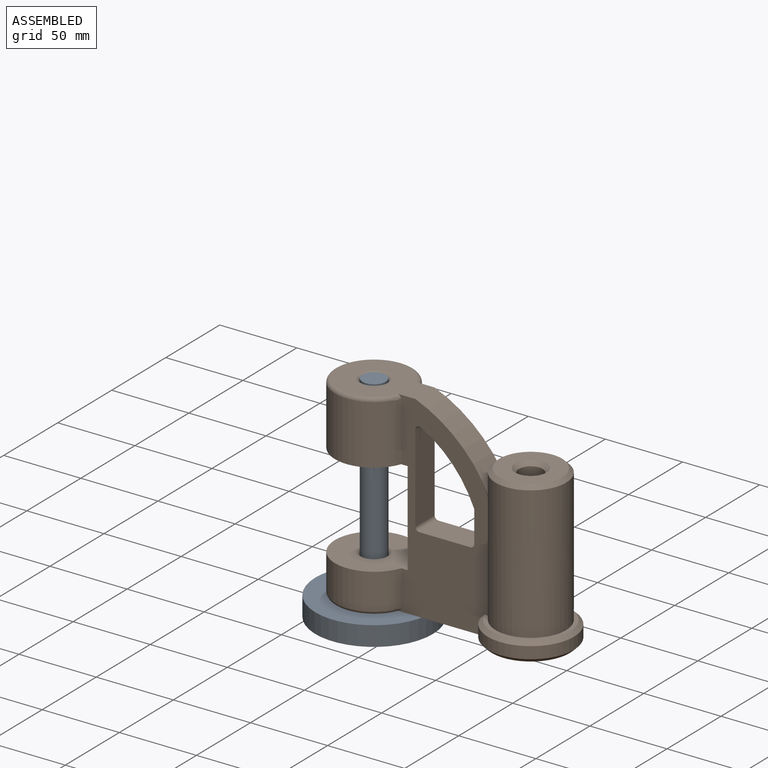
[diagram: assembled view]
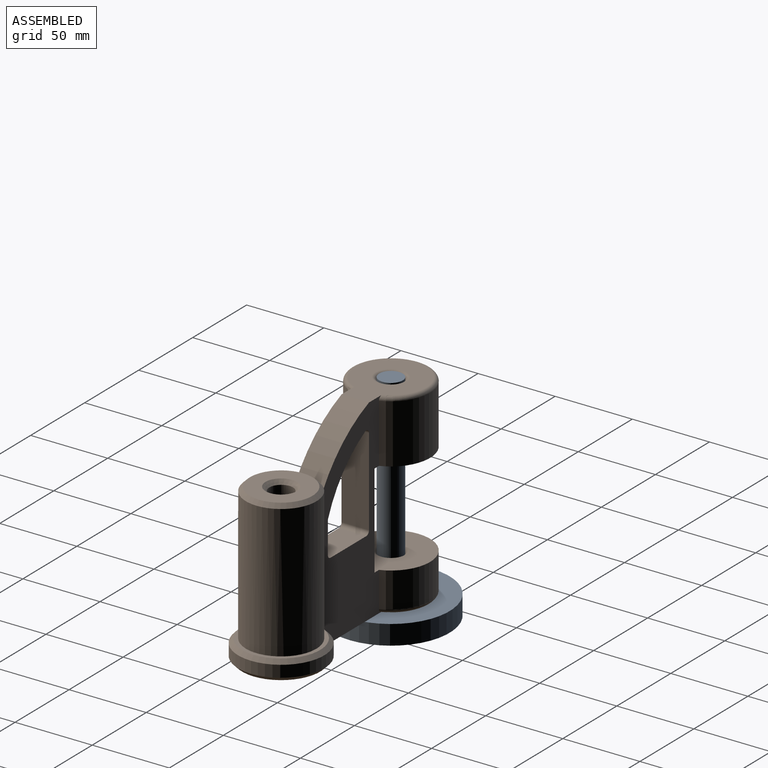
[diagram: assembled view, second angle]
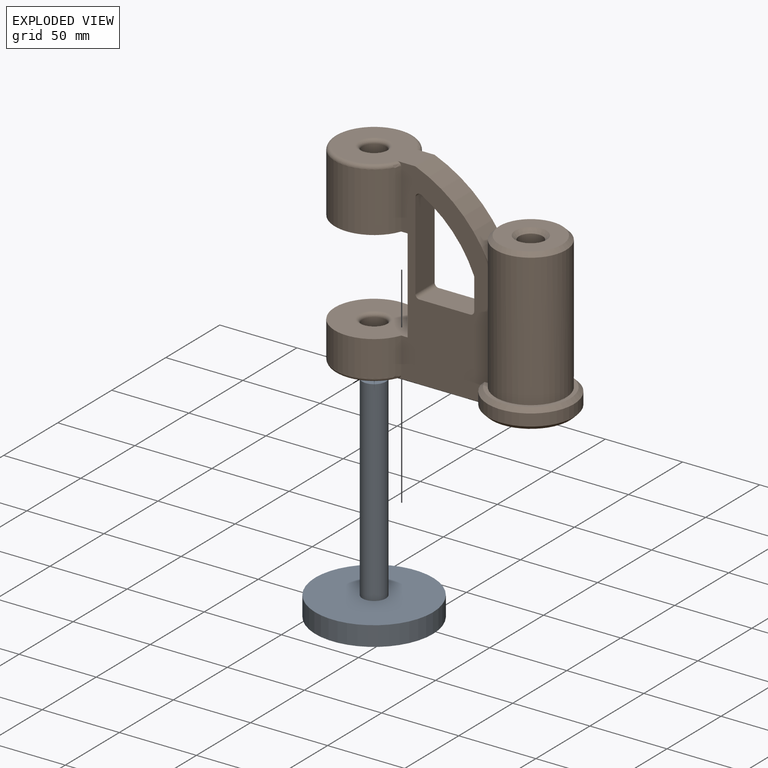
[diagram: exploded view]
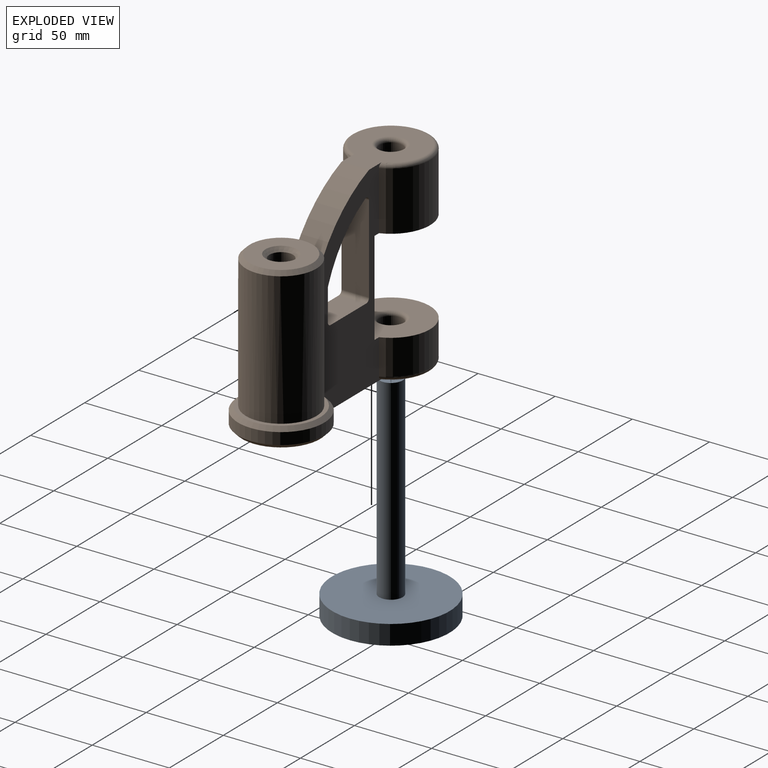
[diagram: exploded view, second angle]
ASSEMBLY  parts=2 mates=2
PART A: 5 faces, bbox 76.2x76.2x139.7 mm
  f0: cylinder r=7.62mm len=127mm, axis (0,0,-1), area 6080.5mm2, adj f1,f3
  f1: plane 15.24x15.24mm, normal (0,0,1), area 182.4mm2, adj f0
  f2: cylinder r=38.1mm len=76.2mm, axis (0,0,-1), area 3040.2mm2, adj f3,f4
  f3: plane 76.2x76.2mm, normal (0,0,1), area 4378mm2, adj f0,f2
  f4: plane 76.2x76.2mm, normal (0,0,-1), area 4560.4mm2, adj f2
PART B: 36 faces, bbox 157.1x55.9x127 mm
  f0: plane 127.04x59.52mm, normal (0,-1,0), area 4274.5mm2, adj f3,f5,f6,f7,f9,f11,f12,f13
  f1: plane 127.04x59.52mm, normal (0,1,0), area 4274.5mm2, adj f3,f5,f6,f7,f9,f11,f12,f13
  f2: cylinder r=7.62mm len=35.56mm, axis (0,0,-1), area 1702.5mm2, adj f20,f27
  f3: cylinder r=25.4mm len=50.8mm, axis (0,0,-1), area 5388.4mm2, adj f0,f1,f18,f28
  f4: cylinder r=7.62mm len=20.32mm, axis (0,0,-1), area 972.9mm2, adj f19,f25
  f5: cylinder r=25.4mm len=50.8mm, axis (0,0,-1), area 3233.1mm2, adj f0,f1,f17,f26
  f6: plane 55.88x45.72mm, normal (0,0,1), area 1508.6mm2, adj f0,f1,f11,f27,f28
  f7: plane 149.86x50.8mm, normal (0,0,-1), area 3988.3mm2, adj f0,f1,f25,f26,f33,f35
  f8: cylinder r=7.62mm len=96.52mm, axis (0,0,-1), area 4621.2mm2, adj f33,f34
  f9: cylinder r=22.86mm len=86.36mm, axis (0,0,-1), area 11079.6mm2, adj f0,f1,f11,f29,f32
  f10: plane 40.64x40.64mm, normal (0,0,1), area 972.9mm2, adj f32,f34
  f11: cylinder r=88.9mm len=47.52mm, axis (0,1,0), area 1132.6mm2, adj f0,f1,f6,f9
  f12: cylinder r=76.2mm len=38.03mm, axis (0,1,0), area 926.9mm2, adj f0,f1,f21,f24
  f13: plane 20.06x17.78mm, normal (-1,0,0), area 356.7mm2, adj f0,f1,f21,f22
  f14: plane 33.02x17.78mm, normal (0,0,1), area 587.1mm2, adj f0,f1,f22,f23
  f15: plane 56.83x17.78mm, normal (1,0,0), area 1010.3mm2, adj f0,f1,f23,f24
  f16: plane 60.96x17.78mm, normal (-1,0,0), area 1083.9mm2, adj f0,f1,f17,f18
  f17: plane 53.34x50.8mm, normal (0,0,1), area 1757.1mm2, adj f0,f1,f5,f16,f19
  f18: plane 53.34x50.8mm, normal (0,0,-1), area 1757.1mm2, adj f0,f1,f3,f16,f20
  f19: torus R=10.16mm, axis (0,0,-1), area 214.2mm2, adj f4,f17
  f20: torus R=10.16mm, axis (0,0,-1), area 214.2mm2, adj f2,f18
  f21: cylinder r=2.54mm len=17.78mm, axis (0,1,0), area 17.6mm2, adj f0,f1,f12,f13
  f22: cylinder r=2.54mm len=17.78mm, axis (0,-1,0), area 70.9mm2, adj f0,f1,f13,f14
  f23: cylinder r=2.54mm len=17.78mm, axis (0,-1,0), area 70.9mm2, adj f0,f1,f14,f15
  f24: cylinder r=2.54mm len=17.78mm, axis (0,1,0), area 93.4mm2, adj f0,f1,f12,f15
  f25: torus R=10.16mm, axis (0,0,1), area 214.2mm2, adj f4,f7
  f26: torus R=22.86mm, axis (0,0,1), area 541mm2, adj f0,f1,f5,f7
  f27: torus R=10.16mm, axis (0,0,1), area 214.2mm2, adj f2,f6
  f28: torus R=22.86mm, axis (0,0,1), area 541mm2, adj f0,f1,f3,f6
  f29: plane 50.8x49.19mm, normal (0,0,1), area 338.8mm2, adj f0,f1,f9,f31
  f30: cylinder r=27.94mm len=55.88mm, axis (0,0,-1), area 1199.8mm2, adj f0,f1,f31,f35
  f31: cone r=25.4mm half-angle=45deg, axis (0,0,-1), area 536.7mm2, adj f0,f1,f29,f30
  f32: cone r=20.32mm half-angle=45deg, axis (0,0,-1), area 487.3mm2, adj f9,f10
  f33: cone r=10.16mm half-angle=45deg, axis (0,0,-1), area 200.6mm2, adj f7,f8
  f34: cone r=7.62mm half-angle=45deg, axis (0,0,1), area 200.6mm2, adj f8,f10
  f35: cone r=27.94mm half-angle=45deg, axis (0,0,1), area 536.7mm2, adj f0,f1,f7,f30
PLACE A t=(-18.39,40.75,0)mm
PLACE B t=(-18.39,40.75,12.7)mm
MATE planar B.f2 <-> A.f0  axis (0,0,-1) through (-18.39,40.75,12.7)mm
MATE cylindrical B.f2 <-> A.f0  axis (0,0,1) through (-18.39,40.75,137.16)mm
